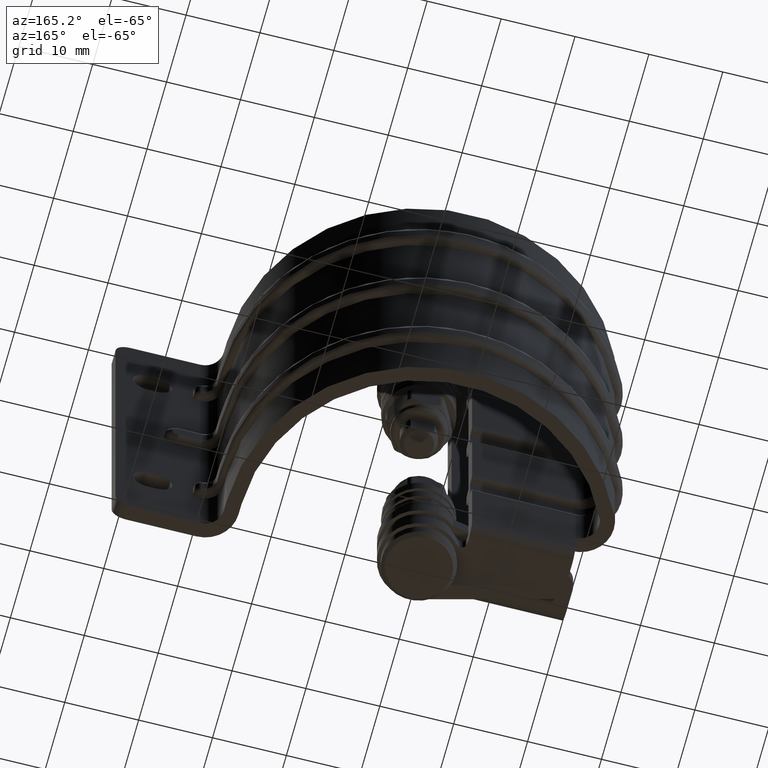
[diagram: clean part render]
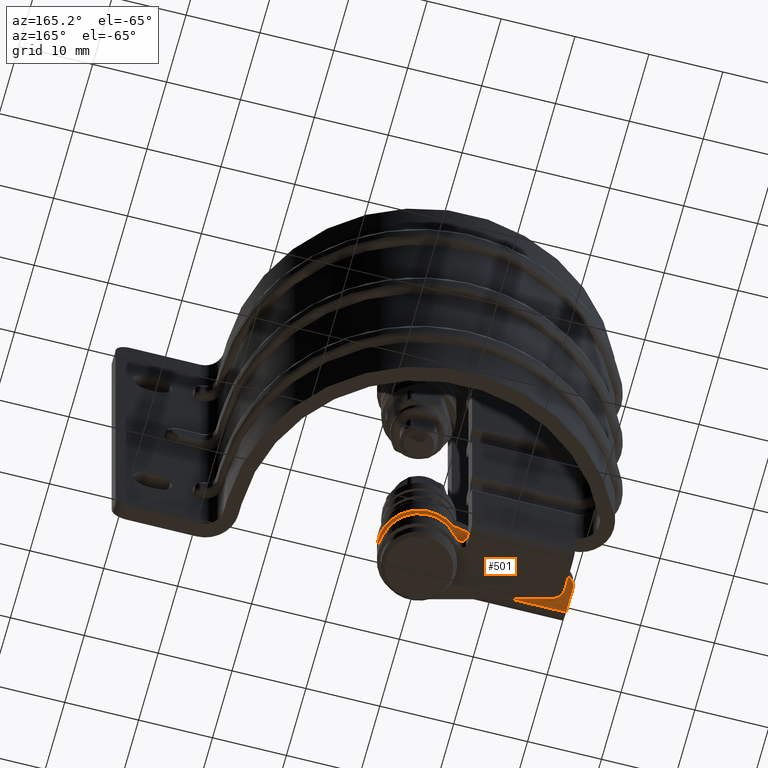
[diagram: same view with one face highlighted and labeled with its STEP entity id]
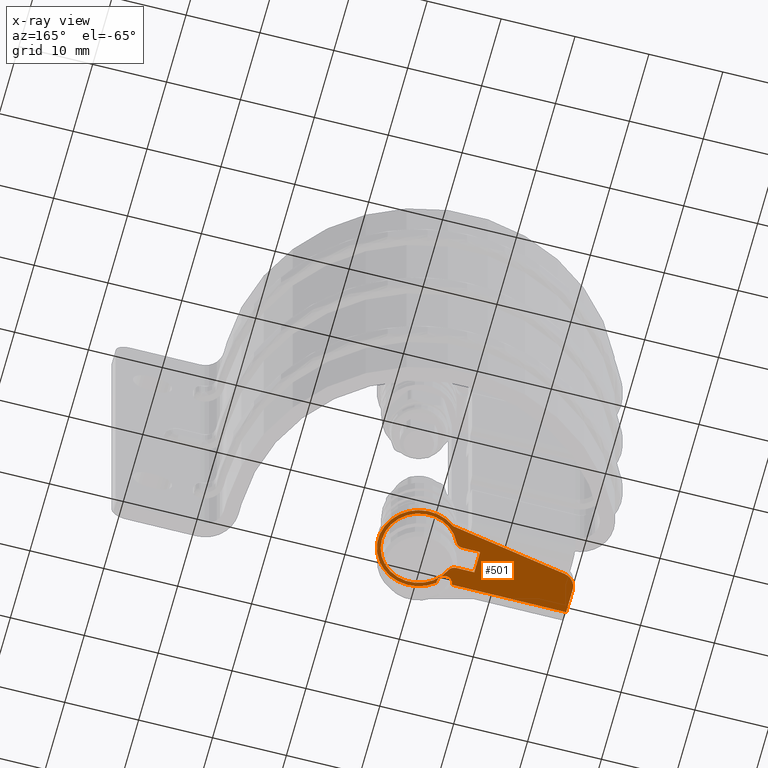
[diagram: x-ray of the same camera — body ghosted, the highlighted face saturated]
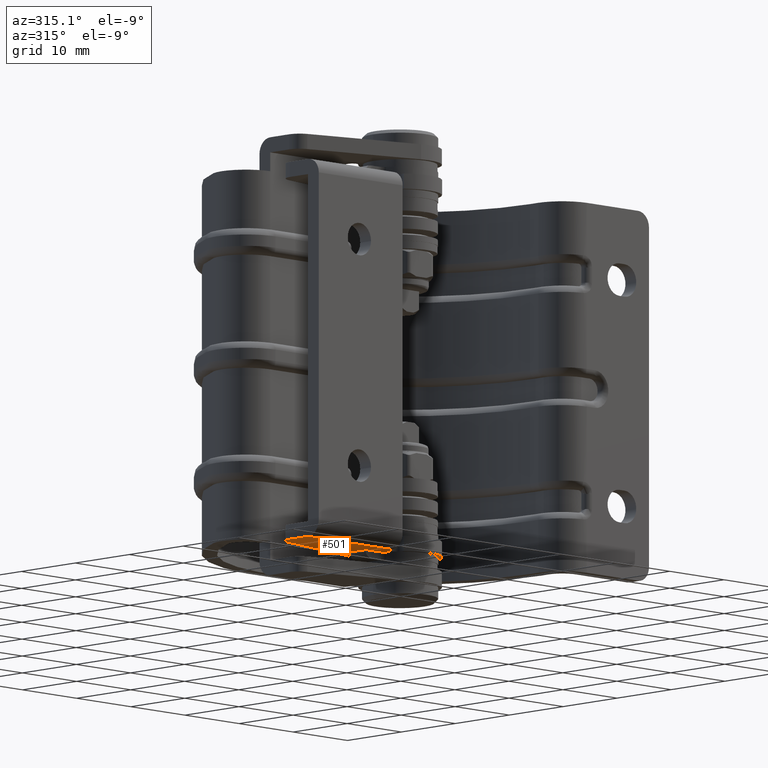
[diagram: same view with one face highlighted and labeled with its STEP entity id]
A machine part, auxiliary view. The second image highlights one B-rep face of the part: STEP entity #501.
The next image is the same camera in x-ray: the body ghosted, the highlighted face saturated — about 0% of this face is hidden behind the body in this view.
A second angle (auxiliary view) of the same face is appended — the face is thin or edge-on in the first view.
In plain terms, the highlighted planar face has unit normal (0, 0, 1).
Its self-contained STEP definition (entity closure, byte-faithful):
#501=ADVANCED_FACE('',(#4461,#4462),#4460,.F.);
#4460=PLANE('',#8710);
#4461=FACE_OUTER_BOUND('',#8711,.T.);
#4462=FACE_BOUND('',#8712,.T.);
#8707=CARTESIAN_POINT('',(1.03958262693E+01,9.03160936012E+00,-2.50000000000E+01));
#8708=DIRECTION('',(0.00000000000E+00,0.00000000000E+00,1.00000000000E+00));
#8709=DIRECTION('',(-1.00000000000E+00,0.00000000000E+00,0.00000000000E+00));
#8710=AXIS2_PLACEMENT_3D('',#8707,#8708,#8709);
#8711=EDGE_LOOP('',(#10750,#10751,#10752,#10753,#10754,#10755,#10756));
#8712=EDGE_LOOP('',(#10757,#10758,#10759,#10760,#10761,#10762));
#10750=ORIENTED_EDGE('',*,*,#11874,.F.);
#10751=ORIENTED_EDGE('',*,*,#11863,.T.);
#10752=ORIENTED_EDGE('',*,*,#11878,.F.);
#10753=ORIENTED_EDGE('',*,*,#11885,.F.);
#10754=ORIENTED_EDGE('',*,*,#11886,.T.);
#10755=ORIENTED_EDGE('',*,*,#11887,.T.);
#10756=ORIENTED_EDGE('',*,*,#11871,.F.);
#10757=ORIENTED_EDGE('',*,*,#11888,.F.);
#10758=ORIENTED_EDGE('',*,*,#11889,.F.);
#10759=ORIENTED_EDGE('',*,*,#11890,.T.);
#10760=ORIENTED_EDGE('',*,*,#11891,.F.);
#10761=ORIENTED_EDGE('',*,*,#11892,.F.);
#10762=ORIENTED_EDGE('',*,*,#11893,.F.);
#11863=EDGE_CURVE('',#18114,#18106,#18115,.T.);
#11871=EDGE_CURVE('',#18163,#18170,#18171,.T.);
#11874=EDGE_CURVE('',#18114,#18163,#18190,.T.);
#11878=EDGE_CURVE('',#18209,#18106,#18216,.T.);
#11885=EDGE_CURVE('',#18252,#18209,#18259,.T.);
#11886=EDGE_CURVE('',#18252,#18265,#18266,.T.);
#11887=EDGE_CURVE('',#18265,#18170,#18272,.T.);
#11888=EDGE_CURVE('',#18278,#18279,#18280,.T.);
#11889=EDGE_CURVE('',#18286,#18278,#18287,.T.);
#11890=EDGE_CURVE('',#18286,#18293,#18294,.T.);
#11891=EDGE_CURVE('',#18300,#18293,#18301,.T.);
#11892=EDGE_CURVE('',#18307,#18300,#18308,.T.);
#11893=EDGE_CURVE('',#18279,#18307,#18314,.T.);
#18106=VERTEX_POINT('',#22721);
#18114=VERTEX_POINT('',#22726);
#18115=LINE('',#22727,#22728);
#18163=VERTEX_POINT('',#22755);
#18170=VERTEX_POINT('',#22759);
#18171=LINE('',#22760,#22761);
#18190=CIRCLE('',#22773,5.50000000000E+00);
#18209=VERTEX_POINT('',#22783);
#18216=CIRCLE('',#22790,1.00000000000E+00);
#18252=VERTEX_POINT('',#22808);
#18259=LINE('',#22813,#22814);
#18265=VERTEX_POINT('',#22816);
#18266=LINE('',#22817,#22818);
#18272=CIRCLE('',#22823,2.00000000000E+00);
#18278=VERTEX_POINT('',#22824);
#18279=VERTEX_POINT('',#22825);
#18280=CIRCLE('',#22829,1.00000000000E+00);
#18286=VERTEX_POINT('',#22830);
#18287=LINE('',#22831,#22832);
#18293=VERTEX_POINT('',#22834);
#18294=LINE('',#22835,#22836);
#18300=VERTEX_POINT('',#22838);
#18301=LINE('',#22839,#22840);
#18307=VERTEX_POINT('',#22842);
#18308=CIRCLE('',#22846,1.00000000000E+00);
#18314=CIRCLE('',#22850,5.00000000000E+00);
#22721=CARTESIAN_POINT('',(-3.50000000000E+00,-4.00000000000E+00,-2.50000000000E+01));
#22726=CARTESIAN_POINT('',(-3.50000000000E+00,-4.24264068712E+00,-2.50000000000E+01));
#22727=CARTESIAN_POINT('',(-3.50000000000E+00,-4.24264068712E+00,-2.50000000000E+01));
#22728=VECTOR('',#22729,2.42640687120E-01);
#22729=DIRECTION('',(-3.45731182748E-12,1.00000000000E+00,-1.46418711592E-14));
#22755=CARTESIAN_POINT('',(-3.50000000000E+00,4.24264068712E+00,-2.50000000000E+01));
#22759=CARTESIAN_POINT('',(-1.93643849419E+01,1.30306925349E+00,-2.50000000000E+01));
#22760=CARTESIAN_POINT('',(-3.50000000000E+00,4.24264068712E+00,-2.50000000000E+01));
#22761=VECTOR('',#22762,1.61344287100E+01);
#22762=DIRECTION('',(-9.83262886281E-01,-1.82192470925E-01,2.20194575381E-16));
#22770=CARTESIAN_POINT('',(0.00000000000E+00,0.00000000000E+00,-2.50000000000E+01));
#22771=DIRECTION('',(0.00000000000E+00,0.00000000000E+00,1.00000000000E+00));
#22772=DIRECTION('',(-6.36363636363E-01,-7.71389215840E-01,0.00000000000E+00));
#22773=AXIS2_PLACEMENT_3D('',#22770,#22771,#22772);
#22783=CARTESIAN_POINT('',(-5.50000000000E+00,-4.00000000000E+00,-2.50000000000E+01));
#22787=CARTESIAN_POINT('',(-4.50000000000E+00,-4.00000000000E+00,-2.50000000000E+01));
#22788=DIRECTION('',(-3.08148791102E-30,1.73472347598E-15,-1.00000000000E+00));
#22789=DIRECTION('',(-1.00000000000E+00,-1.89881747478E-15,-2.12435339081E-31));
#22790=AXIS2_PLACEMENT_3D('',#22787,#22788,#22789);
#22808=CARTESIAN_POINT('',(-2.10000000000E+01,-4.00000000000E+00,-2.50000000000E+01));
#22813=CARTESIAN_POINT('',(-2.10000000000E+01,-4.00000000000E+00,-2.50000000000E+01));
#22814=VECTOR('',#22815,1.55000000000E+01);
#22815=DIRECTION('',(1.00000000000E+00,-1.14603667058E-16,-9.44334216559E-14));
#22816=CARTESIAN_POINT('',(-2.10000000000E+01,-6.63456519075E-01,-2.50000000000E+01));
#22817=CARTESIAN_POINT('',(-2.10000000000E+01,-4.00000000000E+00,-2.50000000000E+01));
#22818=VECTOR('',#22819,3.33654348093E+00);
#22819=DIRECTION('',(-7.34704178857E-14,1.00000000000E+00,-4.36563352654E-13));
#22820=CARTESIAN_POINT('',(-1.90000000000E+01,-6.63456519075E-01,-2.50000000000E+01));
#22821=DIRECTION('',(0.00000000000E+00,0.00000000000E+00,-1.00000000000E+00));
#22822=DIRECTION('',(1.00000000000E+00,-1.25677246388E-13,-0.00000000000E+00));
#22823=AXIS2_PLACEMENT_3D('',#22820,#22821,#22822);
#22824=CARTESIAN_POINT('',(-5.45435605732E+00,1.50000000000E+00,-2.50000000000E+01));
#22825=CARTESIAN_POINT('',(-4.54529671443E+00,2.08333333334E+00,-2.50000000000E+01));
#22826=CARTESIAN_POINT('',(-5.45435605732E+00,2.50000000000E+00,-2.50000000000E+01));
#22827=DIRECTION('',(-1.73472347598E-15,-1.54074395551E-30,1.00000000000E+00));
#22828=DIRECTION('',(-8.88178419700E-16,1.00000000000E+00,3.15292154473E-45));
#22829=AXIS2_PLACEMENT_3D('',#22826,#22827,#22828);
#22830=CARTESIAN_POINT('',(-7.90000000000E+00,1.50000000000E+00,-2.50000000000E+01));
#22831=CARTESIAN_POINT('',(-7.90000000000E+00,1.50000000000E+00,-2.50000000000E+01));
#22832=VECTOR('',#22833,2.44564394268E+00);
#22833=DIRECTION('',(1.00000000000E+00,0.00000000000E+00,0.00000000000E+00));
#22834=CARTESIAN_POINT('',(-7.90000000000E+00,-1.50000000000E+00,-2.50000000000E+01));
#22835=CARTESIAN_POINT('',(-7.90000000000E+00,1.50000000000E+00,-2.50000000000E+01));
#22836=VECTOR('',#22837,3.00000000000E+00);
#22837=DIRECTION('',(0.00000000000E+00,-1.00000000000E+00,0.00000000000E+00));
#22838=CARTESIAN_POINT('',(-5.45435605732E+00,-1.50000000000E+00,-2.50000000000E+01));
#22839=CARTESIAN_POINT('',(-5.45435605732E+00,-1.50000000000E+00,-2.50000000000E+01));
#22840=VECTOR('',#22841,2.44564394268E+00);
#22841=DIRECTION('',(-1.00000000000E+00,0.00000000000E+00,0.00000000000E+00));
#22842=CARTESIAN_POINT('',(-4.54529671443E+00,-2.08333333333E+00,-2.50000000000E+01));
#22843=CARTESIAN_POINT('',(-5.45435605732E+00,-2.50000000000E+00,-2.50000000000E+01));
#22844=DIRECTION('',(7.22801448324E-16,-1.57696658316E-15,1.00000000000E+00));
#22845=DIRECTION('',(-9.09059342886E-01,-4.16666666667E-01,5.91645678916E-31));
#22846=AXIS2_PLACEMENT_3D('',#22843,#22844,#22845);
#22847=CARTESIAN_POINT('',(3.46944695195E-16,0.00000000000E+00,-2.50000000000E+01));
#22848=DIRECTION('',(0.00000000000E+00,0.00000000000E+00,-1.00000000000E+00));
#22849=DIRECTION('',(-1.00000000000E+00,-0.00000000000E+00,-0.00000000000E+00));
#22850=AXIS2_PLACEMENT_3D('',#22847,#22848,#22849);